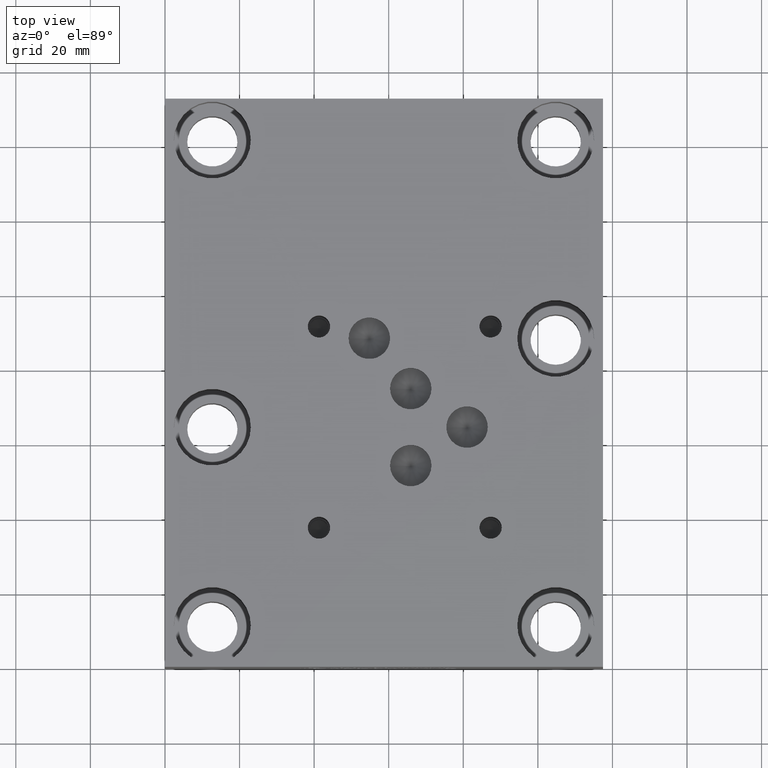
[diagram: clean part render]
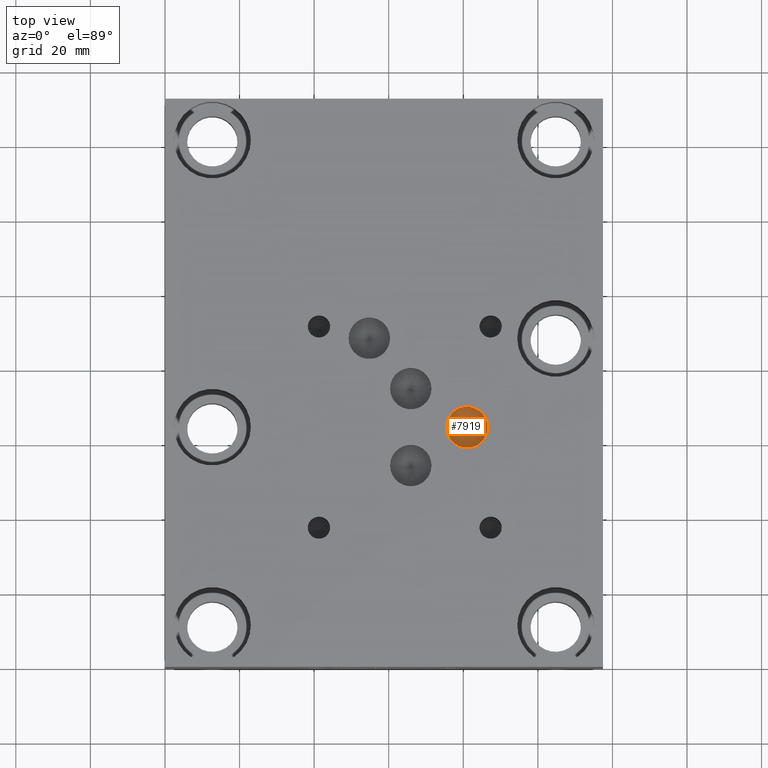
[diagram: same view with one face highlighted and labeled with its STEP entity id]
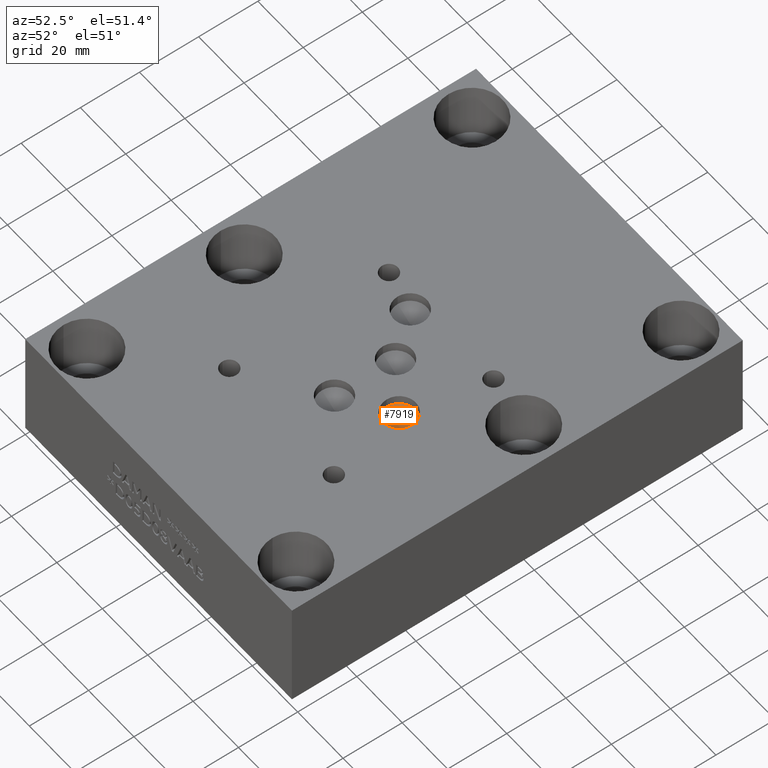
[diagram: same view with one face highlighted and labeled with its STEP entity id]
A machine part, top view. The second image highlights one B-rep face of the part: STEP entity #7919.
A second angle (auxiliary view) of the same face is appended — the face is thin or edge-on in the first view.
In plain terms, the highlighted conical surface has half-angle 60 deg.
Its self-contained STEP definition (entity closure, byte-faithful):
#22=CONICAL_SURFACE('',#8343,2.7813,1.0471975511966);
#128=CIRCLE('',#8344,5.5626);
#129=CIRCLE('',#8345,5.5626);
#941=FACE_OUTER_BOUND('',#1401,.T.);
#1401=EDGE_LOOP('',(#6833,#6834,#6835,#6836));
#2185=LINE('',#13398,#2947);
#2947=VECTOR('',#9921,2.7813);
#3670=VERTEX_POINT('',#13394);
#3671=VERTEX_POINT('',#13395);
#3672=VERTEX_POINT('',#13397);
#4743=EDGE_CURVE('',#3670,#3671,#128,.T.);
#4744=EDGE_CURVE('',#3671,#3672,#2185,.T.);
#4745=EDGE_CURVE('',#3671,#3670,#129,.T.);
#6833=ORIENTED_EDGE('',*,*,#4743,.T.);
#6834=ORIENTED_EDGE('',*,*,#4744,.T.);
#6835=ORIENTED_EDGE('',*,*,#4744,.F.);
#6836=ORIENTED_EDGE('',*,*,#4745,.T.);
#7919=ADVANCED_FACE('',(#941),#22,.F.);
#8343=AXIS2_PLACEMENT_3D('',#13393,#9917,#9918);
#8344=AXIS2_PLACEMENT_3D('',#13396,#9919,#9920);
#8345=AXIS2_PLACEMENT_3D('',#13399,#9922,#9923);
#9917=DIRECTION('center_axis',(0.,0.,1.));
#9918=DIRECTION('ref_axis',(1.,0.,0.));
#9919=DIRECTION('center_axis',(0.,0.,1.));
#9920=DIRECTION('ref_axis',(1.,0.,0.));
#9921=DIRECTION('',(0.866025403784439,1.06057523872491E-16,-0.5));
#9922=DIRECTION('center_axis',(0.,0.,1.));
#9923=DIRECTION('ref_axis',(1.,0.,0.));
#13393=CARTESIAN_POINT('Origin',(81.0006,64.2874,33.2826456963029));
#13394=CARTESIAN_POINT('',(86.5632,64.2874,34.88843));
#13395=CARTESIAN_POINT('',(75.438,64.2874,34.88843));
#13396=CARTESIAN_POINT('Origin',(81.0006,64.2874,34.88843));
#13397=CARTESIAN_POINT('',(81.0006,64.2874,31.6768613926058));
#13398=CARTESIAN_POINT('',(78.2193,64.2874,33.2826456963029));
#13399=CARTESIAN_POINT('Origin',(81.0006,64.2874,34.88843));